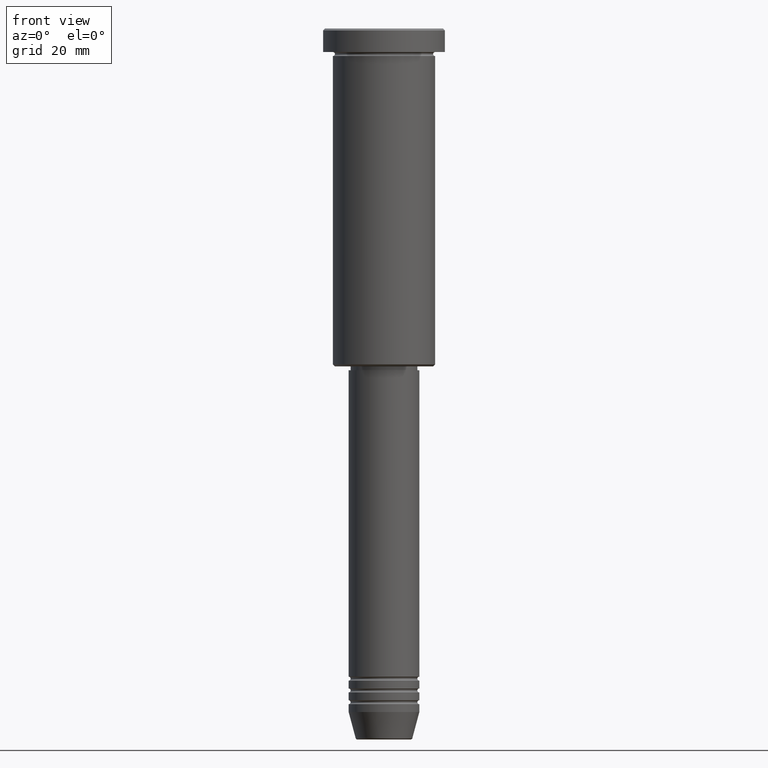
[diagram: clean part render]
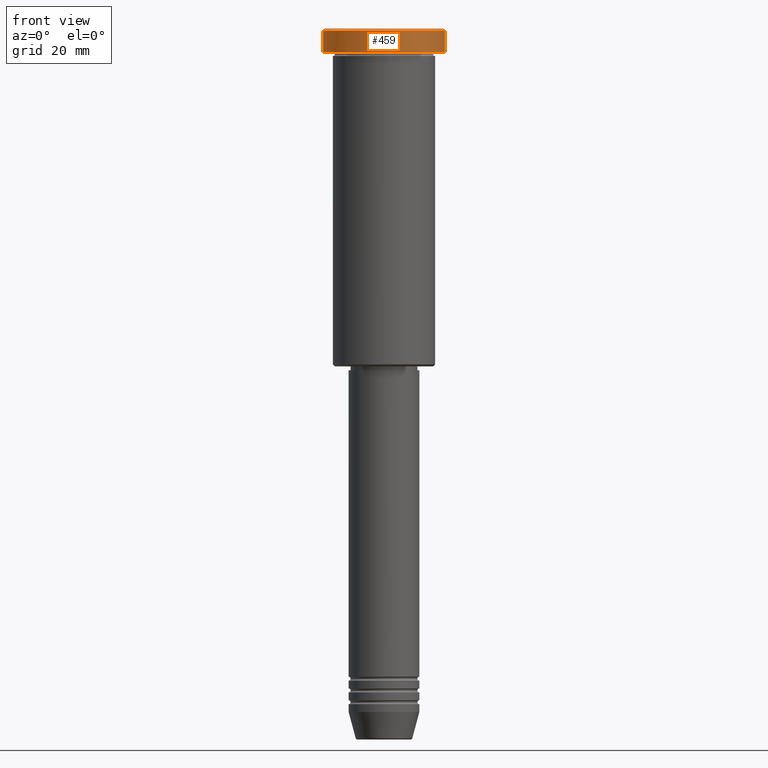
[diagram: same view with one face highlighted and labeled with its STEP entity id]
A machine part, front view. The second image highlights one B-rep face of the part: STEP entity #459.
In plain terms, the highlighted cylindrical surface (partial cylindrical patch) has radius 15.5 mm, axis along (-0, -0, 1).
Its self-contained STEP definition (entity closure, byte-faithful):
#26 = CARTESIAN_POINT ( 'NONE',  ( 0.000000000000000000, 0.000000000000000000, -5.999999999999995559 ) ) ;
#50 = DIRECTION ( 'NONE',  ( 0.000000000000000000, 0.000000000000000000, -1.000000000000000000 ) ) ;
#139 = AXIS2_PLACEMENT_3D ( 'NONE', #168, #50, #789 ) ;
#168 = CARTESIAN_POINT ( 'NONE',  ( 0.000000000000000000, 0.000000000000000000, -0.5000000000000125455 ) ) ;
#173 = CARTESIAN_POINT ( 'NONE',  ( 0.000000000000000000, 0.000000000000000000, 0.000000000000000000 ) ) ;
#189 = DIRECTION ( 'NONE',  ( -0.000000000000000000, -0.000000000000000000, 1.000000000000000000 ) ) ;
#239 = CARTESIAN_POINT ( 'NONE',  ( -15.50000000000000000, 1.898202538678397557E-15, -5.999999999999995559 ) ) ;
#241 = CARTESIAN_POINT ( 'NONE',  ( 15.50000000000000000, 0.000000000000000000, -0.5000000000000125455 ) ) ;
#266 = DIRECTION ( 'NONE',  ( -0.000000000000000000, -0.000000000000000000, 1.000000000000000000 ) ) ;
#316 = VERTEX_POINT ( 'NONE', #239 ) ;
#321 = EDGE_CURVE ( 'NONE', #883, #761, #522, .T. ) ;
#356 = CIRCLE ( 'NONE', #965, 15.50000000000000000 ) ;
#394 = ORIENTED_EDGE ( 'NONE', *, *, #881, .T. ) ;
#417 = VERTEX_POINT ( 'NONE', #1164 ) ;
#431 = AXIS2_PLACEMENT_3D ( 'NONE', #173, #266, #455 ) ;
#455 = DIRECTION ( 'NONE',  ( 1.000000000000000000, 0.000000000000000000, 0.000000000000000000 ) ) ;
#456 = EDGE_CURVE ( 'NONE', #316, #883, #356, .T. ) ;
#459 = ADVANCED_FACE ( 'NONE', ( #558 ), #748, .T. ) ;
#504 = EDGE_CURVE ( 'NONE', #316, #417, #1020, .T. ) ;
#522 = LINE ( 'NONE', #1163, #541 ) ;
#541 = VECTOR ( 'NONE', #714, 1000.000000000000000 ) ;
#558 = FACE_OUTER_BOUND ( 'NONE', #825, .T. ) ;
#639 = DIRECTION ( 'NONE',  ( 1.000000000000000000, 0.000000000000000000, 0.000000000000000000 ) ) ;
#714 = DIRECTION ( 'NONE',  ( -0.000000000000000000, -0.000000000000000000, 1.000000000000000000 ) ) ;
#748 = CYLINDRICAL_SURFACE ( 'NONE', #431, 15.50000000000000000 ) ;
#761 = VERTEX_POINT ( 'NONE', #241 ) ;
#789 = DIRECTION ( 'NONE',  ( 1.000000000000000000, 0.000000000000000000, 0.000000000000000000 ) ) ;
#825 = EDGE_LOOP ( 'NONE', ( #1111, #1168, #1030, #394 ) ) ;
#845 = CARTESIAN_POINT ( 'NONE',  ( -15.50000000000000000, 1.898202538678397557E-15, 0.000000000000000000 ) ) ;
#874 = VECTOR ( 'NONE', #189, 1000.000000000000000 ) ;
#881 = EDGE_CURVE ( 'NONE', #761, #417, #1174, .T. ) ;
#883 = VERTEX_POINT ( 'NONE', #1147 ) ;
#941 = DIRECTION ( 'NONE',  ( -0.000000000000000000, -0.000000000000000000, 1.000000000000000000 ) ) ;
#965 = AXIS2_PLACEMENT_3D ( 'NONE', #26, #941, #639 ) ;
#1020 = LINE ( 'NONE', #845, #874 ) ;
#1030 = ORIENTED_EDGE ( 'NONE', *, *, #321, .T. ) ;
#1111 = ORIENTED_EDGE ( 'NONE', *, *, #504, .F. ) ;
#1147 = CARTESIAN_POINT ( 'NONE',  ( 15.50000000000000000, 0.000000000000000000, -5.999999999999995559 ) ) ;
#1163 = CARTESIAN_POINT ( 'NONE',  ( 15.50000000000000000, 0.000000000000000000, 0.000000000000000000 ) ) ;
#1164 = CARTESIAN_POINT ( 'NONE',  ( -15.50000000000000000, 1.898202538678397557E-15, -0.5000000000000125455 ) ) ;
#1168 = ORIENTED_EDGE ( 'NONE', *, *, #456, .T. ) ;
#1174 = CIRCLE ( 'NONE', #139, 15.50000000000000000 ) ;